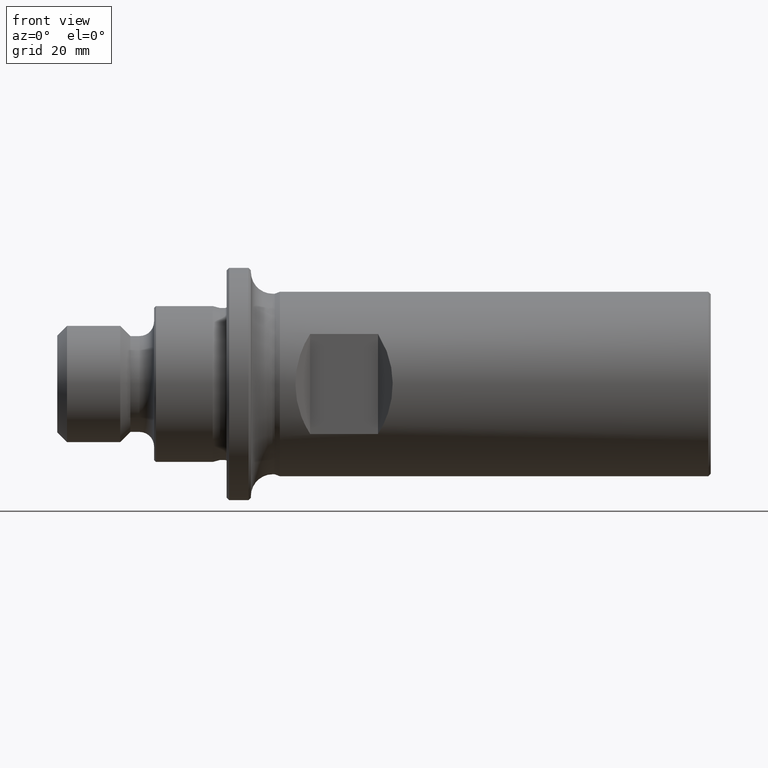
[diagram: clean part render]
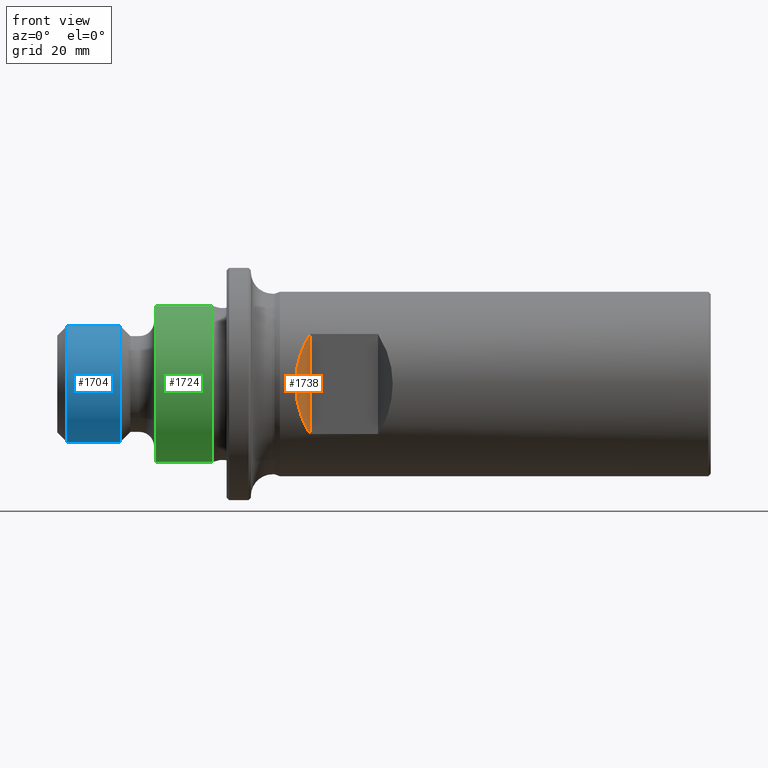
[diagram: same view with three faces highlighted in distinct colors, each labeled with its STEP entity id]
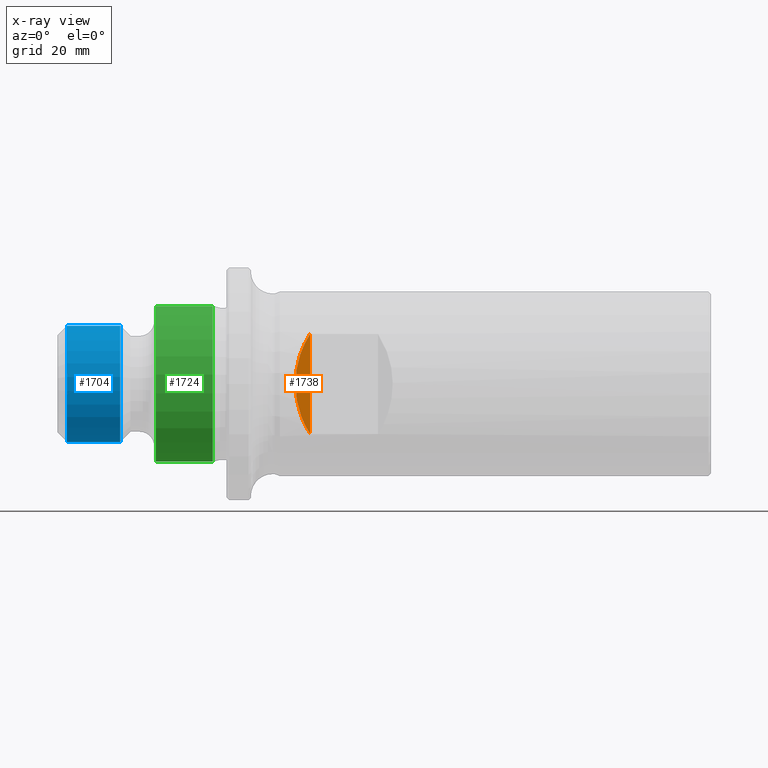
[diagram: x-ray of the same camera — body ghosted, the three highlighted faces saturated]
A machine part, front view with three faces highlighted in distinct colors.
The next image is the same camera in x-ray (body ghosted, the three faces saturated) — at least one of them is partly hidden behind the body in this view.
Their STEP definitions:

[orange] entity #1738 — the highlighted planar face has unit normal (0.7071, -0.7071, 0).
#64 = CARTESIAN_POINT ( 'NONE',  ( -82.75000000000001400, -15.99999999999998900, -10.33936651831243800 ) ) ;
#132 = CARTESIAN_POINT ( 'NONE',  ( -82.75000000000001400, -15.99999999999998900, 10.33936651831243700 ) ) ;
#233 = FACE_OUTER_BOUND ( 'NONE', #934, .T. ) ;
#255 = AXIS2_PLACEMENT_3D ( 'NONE', #1599, #1595, #1592 ) ;
#280 = EDGE_CURVE ( 'NONE', #1132, #1074, #383, .T. ) ;
#309 = EDGE_CURVE ( 'NONE', #1132, #1074, #1469, .T. ) ;
#383 =( BOUNDED_CURVE ( )  B_SPLINE_CURVE ( 3, ( #902, #916, #899, #896 ),
 .UNSPECIFIED., .F., .T. ) 
 B_SPLINE_CURVE_WITH_KNOTS ( ( 4, 4 ),
 ( 2.567886084756980200, 3.715299222422606500 ),
 .UNSPECIFIED. ) 
 CURVE ( )  GEOMETRIC_REPRESENTATION_ITEM ( )  RATIONAL_B_SPLINE_CURVE ( ( 1.000000000000000000, 0.8932633420822393400, 0.8932633420822393400, 1.000000000000000000 ) ) 
 REPRESENTATION_ITEM ( '' )  );
#837 = DIRECTION ( 'NONE',  ( -0.0000000000000000000, -0.0000000000000000000, 1.000000000000000000 ) ) ;
#839 = CARTESIAN_POINT ( 'NONE',  ( -82.75000000000001400, -15.99999999999998900, -15.00000000000000000 ) ) ;
#896 = CARTESIAN_POINT ( 'NONE',  ( -82.75000000000001400, -15.99999999999998900, 10.33936651831243700 ) ) ;
#899 = CARTESIAN_POINT ( 'NONE',  ( -86.93814887365330400, -20.18814887365327200, 3.858274871182214100 ) ) ;
#902 = CARTESIAN_POINT ( 'NONE',  ( -82.75000000000001400, -15.99999999999998900, -10.33936651831243800 ) ) ;
#916 = CARTESIAN_POINT ( 'NONE',  ( -86.93814887365330400, -20.18814887365327200, -3.858274871182210600 ) ) ;
#934 = EDGE_LOOP ( 'NONE', ( #1193, #1096 ) ) ;
#1074 = VERTEX_POINT ( 'NONE', #132 ) ;
#1096 = ORIENTED_EDGE ( 'NONE', *, *, #280, .F. ) ;
#1132 = VERTEX_POINT ( 'NONE', #64 ) ;
#1193 = ORIENTED_EDGE ( 'NONE', *, *, #309, .T. ) ;
#1466 = VECTOR ( 'NONE', #837, 1000.000000000000000 ) ;
#1469 = LINE ( 'NONE', #839, #1466 ) ;
#1592 = DIRECTION ( 'NONE',  ( 0.7071067811865474600, 0.7071067811865474600, 0.0000000000000000000 ) ) ;
#1595 = DIRECTION ( 'NONE',  ( 0.7071067811865475700, -0.7071067811865475700, 0.0000000000000000000 ) ) ;
#1597 = PLANE ( 'NONE',  #255 ) ;
#1599 = CARTESIAN_POINT ( 'NONE',  ( -82.75000000000001400, -15.99999999999998900, -15.00000000000000000 ) ) ;
#1738 = ADVANCED_FACE ( 'NONE', ( #233 ), #1597, .T. ) ;

[blue] entity #1704 — the highlighted cylindrical surface (partial cylindrical patch) has radius 12 mm, axis along (1, -0, -0).
#166 = CARTESIAN_POINT ( 'NONE',  ( -122.0000000000000100, 1.469576158976822200E-015, 11.99999999999998600 ) ) ;
#168 = CARTESIAN_POINT ( 'NONE',  ( -122.0000000000000100, 0.0000000000000000000, -11.99999999999998600 ) ) ;
#204 = CARTESIAN_POINT ( 'NONE',  ( -133.0000000000000000, 0.0000000000000000000, -11.99999999999998400 ) ) ;
#213 = CARTESIAN_POINT ( 'NONE',  ( -133.0000000000000000, 1.469576158976822000E-015, 11.99999999999998400 ) ) ;
#291 = EDGE_CURVE ( 'NONE', #1084, #1085, #1495, .T. ) ;
#292 = EDGE_CURVE ( 'NONE', #1069, #1083, #1492, .T. ) ;
#302 = EDGE_CURVE ( 'NONE', #1085, #1083, #1479, .T. ) ;
#314 = EDGE_CURVE ( 'NONE', #1084, #1069, #1461, .T. ) ;
#574 = DIRECTION ( 'NONE',  ( 0.0000000000000000000, 0.0000000000000000000, -1.000000000000000000 ) ) ;
#581 = DIRECTION ( 'NONE',  ( 1.000000000000000000, -0.0000000000000000000, -0.0000000000000000000 ) ) ;
#585 = CARTESIAN_POINT ( 'NONE',  ( -133.0000000000000000, 0.0000000000000000000, 0.0000000000000000000 ) ) ;
#607 = ORIENTED_EDGE ( 'NONE', *, *, #291, .F. ) ;
#682 = ORIENTED_EDGE ( 'NONE', *, *, #292, .T. ) ;
#720 = AXIS2_PLACEMENT_3D ( 'NONE', #2131, #2130, #2119 ) ;
#867 = DIRECTION ( 'NONE',  ( 0.0000000000000000000, 0.0000000000000000000, -1.000000000000000000 ) ) ;
#868 = DIRECTION ( 'NONE',  ( 1.000000000000000000, -0.0000000000000000000, -0.0000000000000000000 ) ) ;
#869 = CARTESIAN_POINT ( 'NONE',  ( -122.0000000000000100, 0.0000000000000000000, 0.0000000000000000000 ) ) ;
#885 = DIRECTION ( 'NONE',  ( 1.000000000000000000, -0.0000000000000000000, -0.0000000000000000000 ) ) ;
#887 = CARTESIAN_POINT ( 'NONE',  ( 0.0000000000000000000, 0.0000000000000000000, -11.99999999999998600 ) ) ;
#888 = DIRECTION ( 'NONE',  ( 1.000000000000000000, -0.0000000000000000000, -0.0000000000000000000 ) ) ;
#893 = CARTESIAN_POINT ( 'NONE',  ( 0.0000000000000000000, 1.469576158976822200E-015, 11.99999999999998600 ) ) ;
#946 = EDGE_LOOP ( 'NONE', ( #607, #1546, #682, #1557 ) ) ;
#1069 = VERTEX_POINT ( 'NONE', #204 ) ;
#1083 = VERTEX_POINT ( 'NONE', #168 ) ;
#1084 = VERTEX_POINT ( 'NONE', #213 ) ;
#1085 = VERTEX_POINT ( 'NONE', #166 ) ;
#1347 = AXIS2_PLACEMENT_3D ( 'NONE', #585, #581, #574 ) ;
#1355 = AXIS2_PLACEMENT_3D ( 'NONE', #869, #868, #867 ) ;
#1461 = CIRCLE ( 'NONE', #1347, 11.99999999999998400 ) ;
#1479 = CIRCLE ( 'NONE', #1355, 11.99999999999998600 ) ;
#1489 = VECTOR ( 'NONE', #885, 1000.000000000000000 ) ;
#1491 = VECTOR ( 'NONE', #888, 1000.000000000000000 ) ;
#1492 = LINE ( 'NONE', #887, #1489 ) ;
#1495 = LINE ( 'NONE', #893, #1491 ) ;
#1546 = ORIENTED_EDGE ( 'NONE', *, *, #314, .T. ) ;
#1557 = ORIENTED_EDGE ( 'NONE', *, *, #302, .F. ) ;
#1704 = ADVANCED_FACE ( 'NONE', ( #1910 ), #1902, .T. ) ;
#1902 = CYLINDRICAL_SURFACE ( 'NONE', #720, 11.99999999999998600 ) ;
#1910 = FACE_OUTER_BOUND ( 'NONE', #946, .T. ) ;
#2119 = DIRECTION ( 'NONE',  ( 0.0000000000000000000, 0.0000000000000000000, -1.000000000000000000 ) ) ;
#2130 = DIRECTION ( 'NONE',  ( 1.000000000000000000, -0.0000000000000000000, -0.0000000000000000000 ) ) ;
#2131 = CARTESIAN_POINT ( 'NONE',  ( 0.0000000000000000000, 0.0000000000000000000, 0.0000000000000000000 ) ) ;

[green] entity #1724 — the highlighted cylindrical surface (partial cylindrical patch) has radius 16.1 mm, axis along (1, -0, -0).
#142 = CARTESIAN_POINT ( 'NONE',  ( -102.8732050807569500, 0.0000000000000000000, 16.10000000000000100 ) ) ;
#158 = CARTESIAN_POINT ( 'NONE',  ( -102.8732050807569500, 1.971681346627238900E-015, -16.10000000000000100 ) ) ;
#193 = CARTESIAN_POINT ( 'NONE',  ( -114.5999999999999800, 0.0000000000000000000, -16.10000000000000100 ) ) ;
#201 = CARTESIAN_POINT ( 'NONE',  ( -114.5999999999999800, 1.971681346627238900E-015, 16.10000000000000100 ) ) ;
#278 = EDGE_CURVE ( 'NONE', #1077, #1076, #1512, .T. ) ;
#296 = EDGE_CURVE ( 'NONE', #1094, #1097, #1488, .T. ) ;
#324 = EDGE_CURVE ( 'NONE', #1076, #1094, #1445, .T. ) ;
#326 = EDGE_CURVE ( 'NONE', #1077, #1097, #1444, .T. ) ;
#502 = CARTESIAN_POINT ( 'NONE',  ( -135.0000000000000000, 0.0000000000000000000, -16.10000000000000100 ) ) ;
#508 = DIRECTION ( 'NONE',  ( 1.000000000000000000, -0.0000000000000000000, -0.0000000000000000000 ) ) ;
#525 = CARTESIAN_POINT ( 'NONE',  ( -135.0000000000000000, 1.971681346627238900E-015, 16.10000000000000100 ) ) ;
#548 = DIRECTION ( 'NONE',  ( 1.000000000000000000, -0.0000000000000000000, -0.0000000000000000000 ) ) ;
#695 = AXIS2_PLACEMENT_3D ( 'NONE', #1562, #1659, #1563 ) ;
#870 = DIRECTION ( 'NONE',  ( 0.0000000000000000000, 0.0000000000000000000, 1.000000000000000000 ) ) ;
#871 = DIRECTION ( 'NONE',  ( 1.000000000000000000, -0.0000000000000000000, -0.0000000000000000000 ) ) ;
#872 = CARTESIAN_POINT ( 'NONE',  ( -102.8732050807569500, 0.0000000000000000000, 0.0000000000000000000 ) ) ;
#920 = DIRECTION ( 'NONE',  ( 0.0000000000000000000, 0.0000000000000000000, -1.000000000000000000 ) ) ;
#921 = DIRECTION ( 'NONE',  ( -1.000000000000000000, 0.0000000000000000000, 0.0000000000000000000 ) ) ;
#922 = CARTESIAN_POINT ( 'NONE',  ( -114.5999999999999800, 0.0000000000000000000, 0.0000000000000000000 ) ) ;
#937 = EDGE_LOOP ( 'NONE', ( #983, #1179, #1187, #1232 ) ) ;
#983 = ORIENTED_EDGE ( 'NONE', *, *, #324, .F. ) ;
#1076 = VERTEX_POINT ( 'NONE', #201 ) ;
#1077 = VERTEX_POINT ( 'NONE', #193 ) ;
#1094 = VERTEX_POINT ( 'NONE', #142 ) ;
#1097 = VERTEX_POINT ( 'NONE', #158 ) ;
#1179 = ORIENTED_EDGE ( 'NONE', *, *, #278, .F. ) ;
#1187 = ORIENTED_EDGE ( 'NONE', *, *, #326, .T. ) ;
#1232 = ORIENTED_EDGE ( 'NONE', *, *, #296, .F. ) ;
#1359 = AXIS2_PLACEMENT_3D ( 'NONE', #872, #871, #870 ) ;
#1369 = AXIS2_PLACEMENT_3D ( 'NONE', #922, #921, #920 ) ;
#1440 = VECTOR ( 'NONE', #508, 1000.000000000000000 ) ;
#1443 = VECTOR ( 'NONE', #548, 1000.000000000000000 ) ;
#1444 = LINE ( 'NONE', #502, #1440 ) ;
#1445 = LINE ( 'NONE', #525, #1443 ) ;
#1488 = CIRCLE ( 'NONE', #1359, 16.10000000000000100 ) ;
#1512 = CIRCLE ( 'NONE', #1369, 16.10000000000000100 ) ;
#1562 = CARTESIAN_POINT ( 'NONE',  ( -135.0000000000000000, 0.0000000000000000000, 0.0000000000000000000 ) ) ;
#1563 = DIRECTION ( 'NONE',  ( 0.0000000000000000000, 0.0000000000000000000, -1.000000000000000000 ) ) ;
#1659 = DIRECTION ( 'NONE',  ( 1.000000000000000000, -0.0000000000000000000, -0.0000000000000000000 ) ) ;
#1724 = ADVANCED_FACE ( 'NONE', ( #1907 ), #1867, .T. ) ;
#1867 = CYLINDRICAL_SURFACE ( 'NONE', #695, 16.10000000000000100 ) ;
#1907 = FACE_OUTER_BOUND ( 'NONE', #937, .T. ) ;